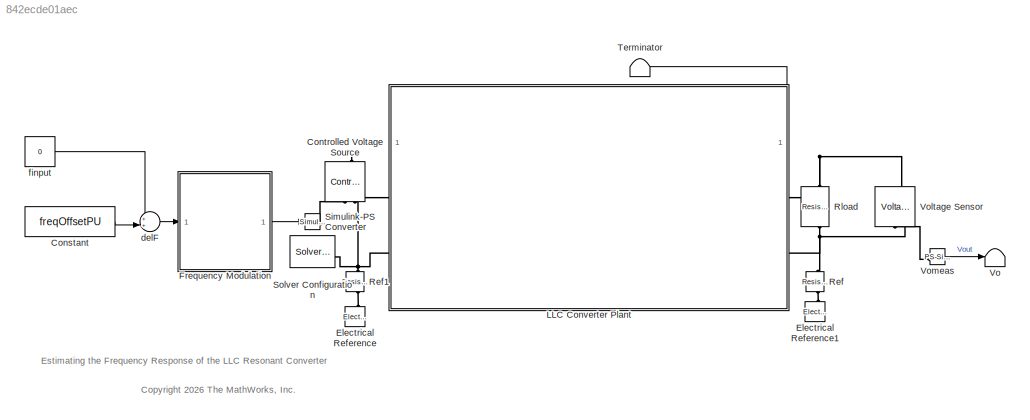
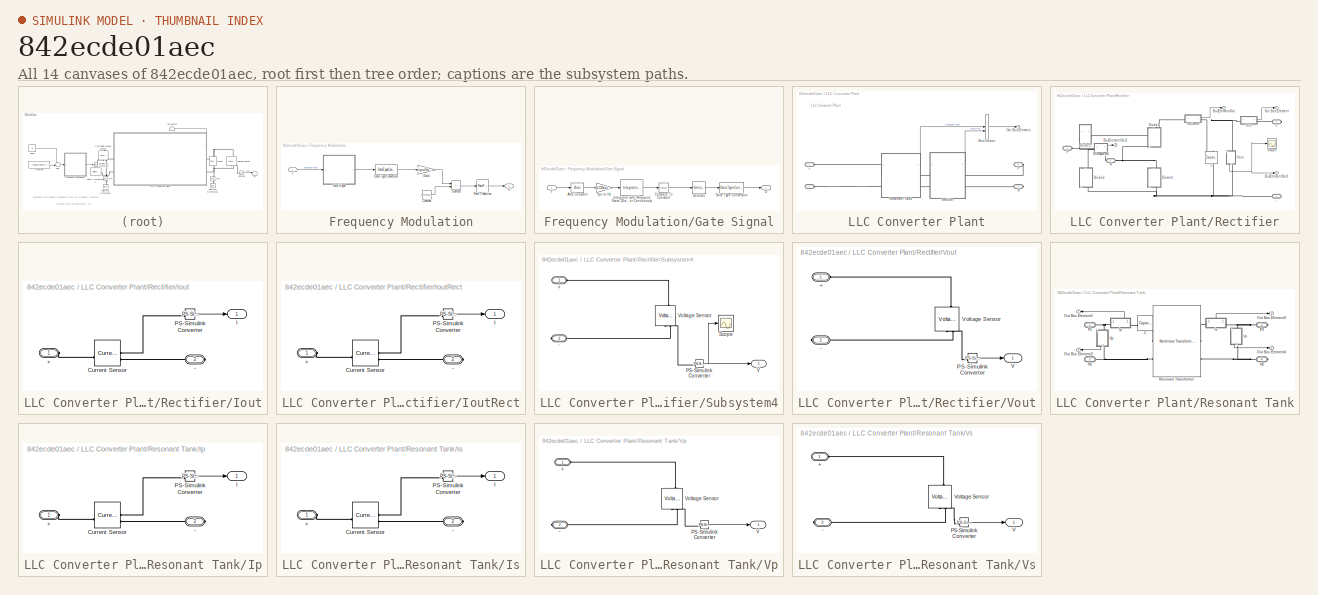
[diagram: thumbnail index - all 14 canvases of the model, root first then tree order]
MODEL slx_842ecde01aec
KIND model
CONFIG AbsTol = 1e-3
CONFIG EnableMultiTasking = off
CONFIG FixedStep = Ts
CONFIG MaxStep = auto
CONFIG MinStep = auto
CONFIG PreLoadFcn = % Parameterize the model\n\nif ~exist('LLCDesign', 'var')\nLLCConverterDefaultInputParameters;\ndisp("default value loaded")\nend\n
CONFIG RelTol = 1e-3
CONFIG SampleTimeConstraint = Unconstrained
CONFIG SolverName = VariableStepAuto
CONFIG StartTime = 0.0
CONFIG StopTime = simulationTime
BLOCK [Constant] Constant
  Value = freqOffsetPU
BLOCK [Reference] Controlled Voltage Source  REF=fl_lib/Electrical/Electrical Sources/Controlled Voltage
Source
  NameLocation = right
  SourceBlock = fl_lib/Electrical/Electrical Sources/Controlled Voltage\nSource
  SourceType = Controlled Voltage\nSource
BLOCK [Reference] Electrical Reference  REF=fl_lib/Electrical/Electrical Elements/Electrical Reference
  NameLocation = right
  SourceBlock = fl_lib/Electrical/Electrical Elements/Electrical Reference
  SourceType = Electrical Reference
BLOCK [Reference] Electrical Reference1  REF=fl_lib/Electrical/Electrical Elements/Electrical Reference
  NameLocation = right
  SourceBlock = fl_lib/Electrical/Electrical Elements/Electrical Reference
  SourceType = Electrical Reference
BLOCK [SubSystem] Frequency Modulation
BLOCK [Constant] Frequency Modulation/Constant
  Value = inputVoltage_V.value
BLOCK [DataTypeConversion] Frequency Modulation/Data Type Conversion
  RndMeth = Floor
  SaturateOnIntegerOverflow = off
BLOCK [Outport] Frequency Modulation/G
BLOCK [Gain] Frequency Modulation/Gain1
  Gain = inputVoltage_V.value*2
BLOCK [SubSystem] Frequency Modulation/Gate Signal
BLOCK [Bias] Frequency Modulation/Gate Signal/Add Constant
  Bias = 1
  SaturateOnIntegerOverflow = off
BLOCK [Reference] Frequency Modulation/Gate Signal/Compare To Constant  REF=simulink/Logic and Bit
Operations/Compare
To Constant
  SourceBlock = simulink/Logic and Bit\nOperations/Compare\nTo Constant
  SourceType = Compare To Constant
BLOCK [DataTypeConversion] Frequency Modulation/Gate Signal/Data Type Conversion
  RndMeth = Floor
  SaturateOnIntegerOverflow = off
BLOCK [Outport] Frequency Modulation/Gate Signal/G
BLOCK [Reference] Frequency Modulation/Gate Signal/Integrator with Wrapped State (Discrete or Continuous)  REF=eeGeneralControl/Integrator with
Wrapped State
(Discrete or Continuous)
  LibrarySourceBlock = ee_sl_lib/General Control/Integrator with\nWrapped State\n(Discrete or Continuous)
  SourceBlock = eeGeneralControl/Integrator with\nWrapped State\n(Discrete or Continuous)
  SourceType = Integrator with Wrapped State (Discrete or Continuous)
BLOCK [Selector] Frequency Modulation/Gate Signal/Selector
  IndexOptions = Index vector (dialog)
  Indices = [1]
  InputPortWidth = 2
  OutputSizes = 1
BLOCK [Inport] Frequency Modulation/Gate Signal/f
BLOCK [Gain] Frequency Modulation/Gate Signal/fpu to Hz
  Gain = LLCDesign.resonantFreq*2*pi
BLOCK [RateTransition] Frequency Modulation/Rate Transition
BLOCK [Sum] Frequency Modulation/Subtract
  IconShape = rectangular
  Inputs = +-
BLOCK [Inport] Frequency Modulation/f
BLOCK [SubSystem] LLC Converter Plant
  PortSchema = {"entries":[{"content":{"sides":[{"content":{"connectorIds":["LConn1","LConn2"]},"type":"ConnectorPlacement.EquallySpacedRectSide","uuid":"9d7037c5-8362-4639-a590-88c7a87a4fbd"},{"content":{"connectorIds":["RConn1","RConn2"],"side":"RIGHT"},"type":"ConnectorPlacement.EquallySpacedRectSide","uuid":"942947c3-387e-46dc-803e-f2f213fbe88c"},{"content":{"connectorIds":["Out1"],"side":"TOP"},"type":"Conn...<+269ch>
  VariantControl = fullConverter
BLOCK [PMIOPort] LLC Converter Plant/+
  Side = Left
BLOCK [PMIOPort] LLC Converter Plant/-
  Port = 2
  Side = Left
BLOCK [BusCreator] LLC Converter Plant/Bus Creator
  DisplayOption = bar
  InheritFromInputs = on
  Inputs = 2
BLOCK [PMIOPort] LLC Converter Plant/N
  Port = 4
  Side = Right
BLOCK [Outport] LLC Converter Plant/Out Bus Element
BLOCK [PMIOPort] LLC Converter Plant/P
  Port = 3
  Side = Right
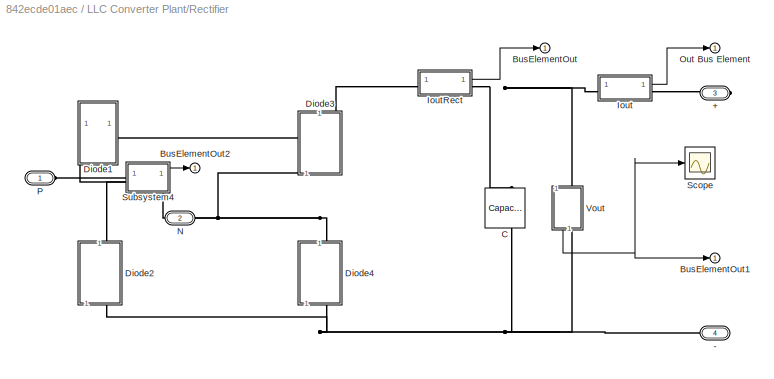
BLOCK [SubSystem] LLC Converter Plant/Rectifier
  PortSchema = {"entries":[{"content":{"sides":[{"content":{"connectorIds":["LConn1","LConn2"]},"type":"ConnectorPlacement.EquallySpacedRectSide","uuid":"4786b3cc-2245-4c72-a50b-9c63e4ad3d8a"},{"content":{"connectorIds":["RConn1","RConn2"],"side":"RIGHT"},"type":"ConnectorPlacement.EquallySpacedRectSide","uuid":"250a01d0-bf95-4e01-bf69-d866bcf3b7bd"},{"content":{"connectorIds":["Out1"],"side":"TOP"},"type":"Conn...<+269ch>
BLOCK [PMIOPort] LLC Converter Plant/Rectifier/+
  Port = 3
  Side = Right
BLOCK [PMIOPort] LLC Converter Plant/Rectifier/-
  Port = 4
  Side = Right
BLOCK [Outport] LLC Converter Plant/Rectifier/BusElementOut
BLOCK [Outport] LLC Converter Plant/Rectifier/BusElementOut1
BLOCK [Outport] LLC Converter Plant/Rectifier/BusElementOut2
BLOCK [Reference] LLC Converter Plant/Rectifier/C  REF=fl_lib/Electrical/Electrical Elements/Capacitor
  NameLocation = left
  SourceBlock = fl_lib/Electrical/Electrical Elements/Capacitor
  SourceType = Capacitor
BLOCK [SubSystem] LLC Converter Plant/Rectifier/Diode1
  NameLocation = top
  PortSchema = {"entries":[{"content":{"sides":[{"content":{},"type":"ConnectorPlacement.EquallySpacedRectSide","uuid":"8b053fdc-57c3-42d0-a795-f49711decca4"},{"content":{"side":"RIGHT"},"type":"ConnectorPlacement.EquallySpacedRectSide","uuid":"4b631d3b-8cca-4ce3-82a2-65a4f492aa8e"},{"content":{"connectorIds":["LConn1"],"side":"TOP"},"type":"ConnectorPlacement.EquallySpacedRectSide","uuid":"517b7f49-533e-4d6c-86...<+354ch>
  ReferencedSubsystem = LLCModelBasicDiode
BLOCK [SubSystem] LLC Converter Plant/Rectifier/Diode2
  NameLocation = right
  ReferencedSubsystem = LLCModelBasicDiode
BLOCK [SubSystem] LLC Converter Plant/Rectifier/Diode3
  NameLocation = right
  ReferencedSubsystem = LLCModelBasicDiode
BLOCK [SubSystem] LLC Converter Plant/Rectifier/Diode4
  NameLocation = right
  ReferencedSubsystem = LLCModelBasicDiode
BLOCK [SubSystem] LLC Converter Plant/Rectifier/Iout
BLOCK [PMIOPort] LLC Converter Plant/Rectifier/Iout/+
  Side = Left
BLOCK [PMIOPort] LLC Converter Plant/Rectifier/Iout/-
  Port = 2
  Side = Right
BLOCK [Reference] LLC Converter Plant/Rectifier/Iout/Current Sensor  REF=fl_lib/Electrical/Electrical Sensors/Current Sensor
  SourceBlock = fl_lib/Electrical/Electrical Sensors/Current Sensor
  SourceType = Current Sensor
BLOCK [Outport] LLC Converter Plant/Rectifier/Iout/I
BLOCK [Reference] LLC Converter Plant/Rectifier/Iout/PS-Simulink Converter  REF=nesl_utility/PS-Simulink
Converter
  SourceBlock = nesl_utility/PS-Simulink\nConverter
  SourceType = PS-Simulink\nConverter
BLOCK [SubSystem] LLC Converter Plant/Rectifier/IoutRect
BLOCK [PMIOPort] LLC Converter Plant/Rectifier/IoutRect/+
  Side = Left
BLOCK [PMIOPort] LLC Converter Plant/Rectifier/IoutRect/-
  Port = 2
  Side = Right
BLOCK [Reference] LLC Converter Plant/Rectifier/IoutRect/Current Sensor  REF=fl_lib/Electrical/Electrical Sensors/Current Sensor
  SourceBlock = fl_lib/Electrical/Electrical Sensors/Current Sensor
  SourceType = Current Sensor
BLOCK [Outport] LLC Converter Plant/Rectifier/IoutRect/I
BLOCK [Reference] LLC Converter Plant/Rectifier/IoutRect/PS-Simulink Converter  REF=nesl_utility/PS-Simulink
Converter
  SourceBlock = nesl_utility/PS-Simulink\nConverter
  SourceType = PS-Simulink\nConverter
BLOCK [PMIOPort] LLC Converter Plant/Rectifier/N
  NameLocation = top
  Port = 2
  Side = Left
BLOCK [Outport] LLC Converter Plant/Rectifier/Out Bus Element
BLOCK [PMIOPort] LLC Converter Plant/Rectifier/P
  NameLocation = top
  Side = Left
BLOCK [Scope] LLC Converter Plant/Rectifier/Scope
  ActiveDisplayYMaximum = 348.72049106971178
  ActiveDisplayYMinimum = 347.92834153908927
  Floating = off
  GraphicalSettings = {"Style":{"BackgroundColor":[0.12941176470588237,0.12941176470588237,0.12941176470588237],"AxesColor":[0.07058823529411765,0.07058823529411765,0.07058823529411765],"LabelsColor":[0.8509803921568627,0.8509803921568627,0.8509803921568627],"PreserveColors":false,"Visible":[true],"LineStyle":["-"],"LineWidth":[1.5],"BarWidth":[0.9],"LineColor":["auto"],"LineFaceAlpha":[1],"LineEdgeAlpha":[1],"Marker":...<+1890ch>
  MultipleDisplayCache = [{"MaxYLimMag":348.72049106971178,"MaxYLimReal":348.72049106971178,"MinYLimMag":347.92834153908927,"MinYLimReal":347.92834153908927,"PlotAsMagnitudePhase":false,"ShowGrid":true,"ShowLegend":false,"Title":"%<SignalLabel>","YLabel":""}]
  NumInputPorts = 1
  ScopeFrameLocation = window
  WasSavedAsWebScope = on
  WindowPosition = [1000.000000,415.000000,816.000000,515.000000,]
BLOCK [SubSystem] LLC Converter Plant/Rectifier/Subsystem4
  PortSchema = {"entries":[{"content":{"sides":[{"content":{"connectorIds":["LConn1"]},"type":"ConnectorPlacement.EquallySpacedRectSide","uuid":"e749c2ff-fd60-426f-a769-b61a7dfe80d2"},{"content":{"connectorIds":["RConn1","Out1"],"side":"RIGHT"},"type":"ConnectorPlacement.EquallySpacedRectSide","uuid":"f3bb02bd-f8d2-4326-b68c-6f969fa4ac22"},{"content":{"side":"TOP"},"type":"ConnectorPlacement.EquallySpacedRectSid...<+234ch>  <repeated x3 — deduplicated; at blocks: Subsystem4, Vout, Is>
BLOCK [PMIOPort] LLC Converter Plant/Rectifier/Subsystem4/+
  Side = Left
BLOCK [PMIOPort] LLC Converter Plant/Rectifier/Subsystem4/-
  Port = 2
  Side = Right
BLOCK [Reference] LLC Converter Plant/Rectifier/Subsystem4/PS-Simulink Converter  REF=nesl_utility/PS-Simulink
Converter
  SourceBlock = nesl_utility/PS-Simulink\nConverter
  SourceType = PS-Simulink\nConverter
BLOCK [Scope] LLC Converter Plant/Rectifier/Subsystem4/Scope
  ActiveDisplayYMaximum = 119.35218059829377
  ActiveDisplayYMinimum = -117.27505684442347
  DataLoggingVariableName = ScopeData5
  Floating = off
  GraphicalSettings = {"Style":{"BackgroundColor":[0.12941176470588237,0.12941176470588237,0.12941176470588237],"AxesColor":[0.07058823529411765,0.07058823529411765,0.07058823529411765],"LabelsColor":[0.8509803921568627,0.8509803921568627,0.8509803921568627],"PreserveColors":false,"Visible":[true],"LineStyle":["-"],"LineWidth":[1.5],"BarWidth":[0.9],"LineColor":["auto"],"LineFaceAlpha":[1],"LineEdgeAlpha":[1],"Marker":...<+2027ch>
  MultipleDisplayCache = [{"MaxYLimMag":119.35218059829377,"MaxYLimReal":119.35218059829377,"MinYLimMag":0,"MinYLimReal":-117.27505684442347,"PlotAsMagnitudePhase":false,"ShowGrid":true,"ShowLegend":false,"Title":"%<SignalLabel>","YLabel":""}]
  NumInputPorts = 1
  ScopeFrameLocation = window
  WasSavedAsWebScope = on
  WindowPosition = [680.000000,330.000000,560.000000,420.000000,]
BLOCK [Outport] LLC Converter Plant/Rectifier/Subsystem4/V
BLOCK [Reference] LLC Converter Plant/Rectifier/Subsystem4/Voltage Sensor  REF=fl_lib/Electrical/Electrical Sensors/Voltage Sensor
  NameLocation = right
  SourceBlock = fl_lib/Electrical/Electrical Sensors/Voltage Sensor
  SourceType = Voltage Sensor
BLOCK [SubSystem] LLC Converter Plant/Rectifier/Vout
  NameLocation = left
BLOCK [PMIOPort] LLC Converter Plant/Rectifier/Vout/+
  Side = Left
BLOCK [PMIOPort] LLC Converter Plant/Rectifier/Vout/-
  Port = 2
  Side = Right
BLOCK [Reference] LLC Converter Plant/Rectifier/Vout/PS-Simulink Converter  REF=nesl_utility/PS-Simulink
Converter
  SourceBlock = nesl_utility/PS-Simulink\nConverter
  SourceType = PS-Simulink\nConverter
BLOCK [Outport] LLC Converter Plant/Rectifier/Vout/V
BLOCK [Reference] LLC Converter Plant/Rectifier/Vout/Voltage Sensor  REF=fl_lib/Electrical/Electrical Sensors/Voltage Sensor
  NameLocation = right
  SourceBlock = fl_lib/Electrical/Electrical Sensors/Voltage Sensor
  SourceType = Voltage Sensor
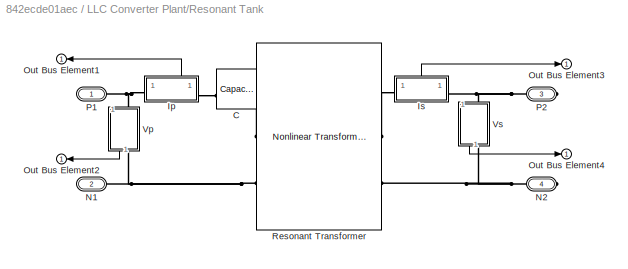
BLOCK [SubSystem] LLC Converter Plant/Resonant Tank
  PortSchema = {"entries":[{"content":{"sides":[{"content":{"connectorIds":["LConn1","LConn2"]},"type":"ConnectorPlacement.EquallySpacedRectSide","uuid":"d505f362-3b8e-4dee-9b5b-731d75550efb"},{"content":{"connectorIds":["RConn1","RConn2"],"side":"RIGHT"},"type":"ConnectorPlacement.EquallySpacedRectSide","uuid":"66ab4b84-9b7a-404b-b3f6-3ac1c371ea42"},{"content":{"connectorIds":["Out1"],"side":"TOP"},"type":"Conn...<+269ch>
BLOCK [Reference] LLC Converter Plant/Resonant Tank/C  REF=fl_lib/Electrical/Electrical Elements/Capacitor
  SourceBlock = fl_lib/Electrical/Electrical Elements/Capacitor
  SourceType = Capacitor
BLOCK [SubSystem] LLC Converter Plant/Resonant Tank/Ip
  PortSchema = {"entries":[{"content":{"sides":[{"content":{"connectorIds":["Out1","LConn1"]},"type":"ConnectorPlacement.EquallySpacedRectSide","uuid":"e749c2ff-fd60-426f-a769-b61a7dfe80d2"},{"content":{"connectorIds":["RConn1"],"side":"RIGHT"},"type":"ConnectorPlacement.EquallySpacedRectSide","uuid":"f3bb02bd-f8d2-4326-b68c-6f969fa4ac22"},{"content":{"side":"TOP"},"type":"ConnectorPlacement.EquallySpacedRectSid...<+234ch>
BLOCK [PMIOPort] LLC Converter Plant/Resonant Tank/Ip/+
  Side = Left
BLOCK [PMIOPort] LLC Converter Plant/Resonant Tank/Ip/-
  Port = 2
  Side = Right
BLOCK [Reference] LLC Converter Plant/Resonant Tank/Ip/Current Sensor  REF=fl_lib/Electrical/Electrical Sensors/Current Sensor
  SourceBlock = fl_lib/Electrical/Electrical Sensors/Current Sensor
  SourceType = Current Sensor
BLOCK [Outport] LLC Converter Plant/Resonant Tank/Ip/I
BLOCK [Reference] LLC Converter Plant/Resonant Tank/Ip/PS-Simulink Converter  REF=nesl_utility/PS-Simulink
Converter
  SourceBlock = nesl_utility/PS-Simulink\nConverter
  SourceType = PS-Simulink\nConverter
BLOCK [SubSystem] LLC Converter Plant/Resonant Tank/Is
BLOCK [PMIOPort] LLC Converter Plant/Resonant Tank/Is/+
  Side = Left
BLOCK [PMIOPort] LLC Converter Plant/Resonant Tank/Is/-
  Port = 2
  Side = Right
BLOCK [Reference] LLC Converter Plant/Resonant Tank/Is/Current Sensor  REF=fl_lib/Electrical/Electrical Sensors/Current Sensor
  SourceBlock = fl_lib/Electrical/Electrical Sensors/Current Sensor
  SourceType = Current Sensor
BLOCK [Outport] LLC Converter Plant/Resonant Tank/Is/I
BLOCK [Reference] LLC Converter Plant/Resonant Tank/Is/PS-Simulink Converter  REF=nesl_utility/PS-Simulink
Converter
  SourceBlock = nesl_utility/PS-Simulink\nConverter
  SourceType = PS-Simulink\nConverter
BLOCK [PMIOPort] LLC Converter Plant/Resonant Tank/N1
  Port = 2
  Side = Left
BLOCK [PMIOPort] LLC Converter Plant/Resonant Tank/N2
  Port = 4
  Side = Right
BLOCK [Outport] LLC Converter Plant/Resonant Tank/Out Bus Element1
  NameLocation = top
BLOCK [Outport] LLC Converter Plant/Resonant Tank/Out Bus Element2
  NameLocation = top
BLOCK [Outport] LLC Converter Plant/Resonant Tank/Out Bus Element3
BLOCK [Outport] LLC Converter Plant/Resonant Tank/Out Bus Element4
BLOCK [PMIOPort] LLC Converter Plant/Resonant Tank/P1
  Side = Left
BLOCK [PMIOPort] LLC Converter Plant/Resonant Tank/P2
  Port = 3
  Side = Right
BLOCK [Reference] LLC Converter Plant/Resonant Tank/Resonant Transformer  REF=ee_lib/Passive/Transformers/Nonlinear
Transformer
  SourceBlock = ee_lib/Passive/Transformers/Nonlinear\nTransformer
  SourceType = Nonlinear\nTransformer
BLOCK [SubSystem] LLC Converter Plant/Resonant Tank/Vp
  NameLocation = left
BLOCK [PMIOPort] LLC Converter Plant/Resonant Tank/Vp/+
  Side = Left
BLOCK [PMIOPort] LLC Converter Plant/Resonant Tank/Vp/-
  Port = 2
  Side = Right
BLOCK [Reference] LLC Converter Plant/Resonant Tank/Vp/PS-Simulink Converter  REF=nesl_utility/PS-Simulink
Converter
  SourceBlock = nesl_utility/PS-Simulink\nConverter
  SourceType = PS-Simulink\nConverter
BLOCK [Outport] LLC Converter Plant/Resonant Tank/Vp/V
BLOCK [Reference] LLC Converter Plant/Resonant Tank/Vp/Voltage Sensor  REF=fl_lib/Electrical/Electrical Sensors/Voltage Sensor
  NameLocation = right
  SourceBlock = fl_lib/Electrical/Electrical Sensors/Voltage Sensor
  SourceType = Voltage Sensor
BLOCK [SubSystem] LLC Converter Plant/Resonant Tank/Vs
  NameLocation = right
BLOCK [PMIOPort] LLC Converter Plant/Resonant Tank/Vs/+
  Side = Left
BLOCK [PMIOPort] LLC Converter Plant/Resonant Tank/Vs/-
  Port = 2
  Side = Right
BLOCK [Reference] LLC Converter Plant/Resonant Tank/Vs/PS-Simulink Converter  REF=nesl_utility/PS-Simulink
Converter
  SourceBlock = nesl_utility/PS-Simulink\nConverter
  SourceType = PS-Simulink\nConverter
BLOCK [Outport] LLC Converter Plant/Resonant Tank/Vs/V
BLOCK [Reference] LLC Converter Plant/Resonant Tank/Vs/Voltage Sensor  REF=fl_lib/Electrical/Electrical Sensors/Voltage Sensor
  NameLocation = right
  SourceBlock = fl_lib/Electrical/Electrical Sensors/Voltage Sensor
  SourceType = Voltage Sensor
BLOCK [Reference] Ref  REF=fl_lib/Electrical/Electrical Elements/Resistor
  NameLocation = right
  SourceBlock = fl_lib/Electrical/Electrical Elements/Resistor
  SourceType = Resistor
BLOCK [Reference] Ref1  REF=fl_lib/Electrical/Electrical Elements/Resistor
  NameLocation = right
  SourceBlock = fl_lib/Electrical/Electrical Elements/Resistor
  SourceType = Resistor
BLOCK [Reference] Rload  REF=fl_lib/Electrical/Electrical Elements/Resistor
  NameLocation = right
  SourceBlock = fl_lib/Electrical/Electrical Elements/Resistor
  SourceType = Resistor
BLOCK [Reference] Simulink-PS Converter  REF=nesl_utility/Simulink-PS
Converter
  SourceBlock = nesl_utility/Simulink-PS\nConverter
  SourceType = Simulink-PS\nConverter
BLOCK [Reference] Solver Configuration  REF=nesl_utility/Solver
Configuration
  SourceBlock = nesl_utility/Solver\nConfiguration
  SourceType = Solver\nConfiguration
BLOCK [Terminator] Terminator
BLOCK [Terminator] Vo
BLOCK [Reference] Voltage Sensor  REF=fl_lib/Electrical/Electrical Sensors/Voltage Sensor
  NameLocation = right
  SourceBlock = fl_lib/Electrical/Electrical Sensors/Voltage Sensor
  SourceType = Voltage Sensor
BLOCK [Reference] Vomeas  REF=nesl_utility/PS-Simulink
Converter
  SourceBlock = nesl_utility/PS-Simulink\nConverter
  SourceType = PS-Simulink\nConverter
BLOCK [Sum] delF
  Inputs = ++|
BLOCK [Constant] finput
  Value = 0
ANNOTATION (root): Estimating the Frequency Response of the LLC Resonant Converter
ANNOTATION (root): <copyright redacted>
ANNOTATION LLC Converter Plant: LLC Converter Plant
LINE Constant:1 -> delF:2
LINE Frequency Modulation/Constant:1 -> Frequency Modulation/Subtract:2
LINE Frequency Modulation/Data Type Conversion:1 -> Frequency Modulation/Gain1:1
LINE Frequency Modulation/Gain1:1 -> Frequency Modulation/Subtract:1
LINE Frequency Modulation/Gate Signal/Add Constant:1 -> Frequency Modulation/Gate Signal/fpu to Hz:1
LINE Frequency Modulation/Gate Signal/Compare To Constant:1 -> Frequency Modulation/Gate Signal/Selector:1
LINE Frequency Modulation/Gate Signal/Data Type Conversion:1 -> Frequency Modulation/Gate Signal/G:1
LINE Frequency Modulation/Gate Signal/Integrator with Wrapped State (Discrete or Continuous):1 -> Frequency Modulation/Gate Signal/Compare To Constant:1
LINE Frequency Modulation/Gate Signal/Selector:1 -> Frequency Modulation/Gate Signal/Data Type Conversion:1
LINE Frequency Modulation/Gate Signal/f:1 -> Frequency Modulation/Gate Signal/Add Constant:1
LINE Frequency Modulation/Gate Signal/fpu to Hz:1 -> Frequency Modulation/Gate Signal/Integrator with Wrapped State (Discrete or Continuous):1
LINE Frequency Modulation/Gate Signal:1 -> Frequency Modulation/Data Type Conversion:1
LINE Frequency Modulation/Rate Transition:1 -> Frequency Modulation/G:1
LINE Frequency Modulation/Subtract:1 -> Frequency Modulation/Rate Transition:1
LINE Frequency Modulation/f:1 -> Frequency Modulation/Gate Signal:1
LINE Frequency Modulation:1 -> Simulink-PS Converter:1
LINE LLC Converter Plant/Bus Creator:1 -> LLC Converter Plant/Out Bus Element:1
LINE LLC Converter Plant/Rectifier/Iout/PS-Simulink Converter:1 -> LLC Converter Plant/Rectifier/Iout/I:1
LINE LLC Converter Plant/Rectifier/Iout:1 -> LLC Converter Plant/Rectifier/Out Bus Element:1
LINE LLC Converter Plant/Rectifier/IoutRect/PS-Simulink Converter:1 -> LLC Converter Plant/Rectifier/IoutRect/I:1
LINE LLC Converter Plant/Rectifier/IoutRect:1 -> LLC Converter Plant/Rectifier/BusElementOut:1
NET LLC Converter Plant/Rectifier/Subsystem4/PS-Simulink Converter:1 -> LLC Converter Plant/Rectifier/Subsystem4/Scope:1, LLC Converter Plant/Rectifier/Subsystem4/V:1
LINE LLC Converter Plant/Rectifier/Subsystem4:1 -> LLC Converter Plant/Rectifier/BusElementOut2:1
LINE LLC Converter Plant/Rectifier/Vout/PS-Simulink Converter:1 -> LLC Converter Plant/Rectifier/Vout/V:1
NET LLC Converter Plant/Rectifier/Vout:1 -> LLC Converter Plant/Rectifier/BusElementOut1:1, LLC Converter Plant/Rectifier/Scope:1
LINE LLC Converter Plant/Rectifier:1 -> LLC Converter Plant/Bus Creator:2
LINE LLC Converter Plant/Resonant Tank/Ip/PS-Simulink Converter:1 -> LLC Converter Plant/Resonant Tank/Ip/I:1
LINE LLC Converter Plant/Resonant Tank/Ip:1 -> LLC Converter Plant/Resonant Tank/Out Bus Element1:1
LINE LLC Converter Plant/Resonant Tank/Is/PS-Simulink Converter:1 -> LLC Converter Plant/Resonant Tank/Is/I:1
LINE LLC Converter Plant/Resonant Tank/Is:1 -> LLC Converter Plant/Resonant Tank/Out Bus Element3:1
LINE LLC Converter Plant/Resonant Tank/Vp/PS-Simulink Converter:1 -> LLC Converter Plant/Resonant Tank/Vp/V:1
LINE LLC Converter Plant/Resonant Tank/Vp:1 -> LLC Converter Plant/Resonant Tank/Out Bus Element2:1
LINE LLC Converter Plant/Resonant Tank/Vs/PS-Simulink Converter:1 -> LLC Converter Plant/Resonant Tank/Vs/V:1
LINE LLC Converter Plant/Resonant Tank/Vs:1 -> LLC Converter Plant/Resonant Tank/Out Bus Element4:1
LINE LLC Converter Plant/Resonant Tank:1 -> LLC Converter Plant/Bus Creator:1
LINE LLC Converter Plant:1 -> Terminator:1
LINE Vomeas:1 -> Vo:1
LINE delF:1 -> Frequency Modulation:1
LINE finput:1 -> delF:1
PLINE Controlled Voltage Source:LConn1 -- LLC Converter Plant:LConn1
PLINE Controlled Voltage Source:RConn1 -- Simulink-PS Converter:RConn1
PNET net1: Controlled Voltage Source:RConn2 -- LLC Converter Plant:LConn2 -- Ref1:LConn1 -- Solver Configuration:RConn1
PLINE Electrical Reference1:LConn1 -- Ref:RConn1
PLINE Electrical Reference:LConn1 -- Ref1:RConn1
PLINE LLC Converter Plant/+:RConn1 -- LLC Converter Plant/Resonant Tank:LConn1
PLINE LLC Converter Plant/-:RConn1 -- LLC Converter Plant/Resonant Tank:LConn2
PLINE LLC Converter Plant/N:RConn1 -- LLC Converter Plant/Rectifier:RConn2
PLINE LLC Converter Plant/P:RConn1 -- LLC Converter Plant/Rectifier:RConn1
PLINE LLC Converter Plant/Rectifier/+:RConn1 -- LLC Converter Plant/Rectifier/Iout:RConn1
PNET net2: LLC Converter Plant/Rectifier/-:RConn1 -- LLC Converter Plant/Rectifier/C:RConn1 -- LLC Converter Plant/Rectifier/Diode2:LConn1 -- LLC Converter Plant/Rectifier/Diode4:LConn1 -- LLC Converter Plant/Rectifier/Vout:RConn1
PNET net3: LLC Converter Plant/Rectifier/C:LConn1 -- LLC Converter Plant/Rectifier/Iout:LConn1 -- LLC Converter Plant/Rectifier/IoutRect:RConn1 -- LLC Converter Plant/Rectifier/Vout:LConn1
PNET net4: LLC Converter Plant/Rectifier/Diode1:LConn1 -- LLC Converter Plant/Rectifier/Diode2:RConn1 -- LLC Converter Plant/Rectifier/P:RConn1 -- LLC Converter Plant/Rectifier/Subsystem4:LConn1
PNET net5: LLC Converter Plant/Rectifier/Diode1:RConn1 -- LLC Converter Plant/Rectifier/Diode3:RConn1 -- LLC Converter Plant/Rectifier/IoutRect:LConn1
PNET net6: LLC Converter Plant/Rectifier/Diode3:LConn1 -- LLC Converter Plant/Rectifier/Diode4:RConn1 -- LLC Converter Plant/Rectifier/N:RConn1 -- LLC Converter Plant/Rectifier/Subsystem4:RConn1
PLINE LLC Converter Plant/Rectifier/Iout/+:RConn1 -- LLC Converter Plant/Rectifier/Iout/Current Sensor:LConn1
PLINE LLC Converter Plant/Rectifier/Iout/-:RConn1 -- LLC Converter Plant/Rectifier/Iout/Current Sensor:RConn2
PLINE LLC Converter Plant/Rectifier/Iout/Current Sensor:RConn1 -- LLC Converter Plant/Rectifier/Iout/PS-Simulink Converter:LConn1
PLINE LLC Converter Plant/Rectifier/IoutRect/+:RConn1 -- LLC Converter Plant/Rectifier/IoutRect/Current Sensor:LConn1
PLINE LLC Converter Plant/Rectifier/IoutRect/-:RConn1 -- LLC Converter Plant/Rectifier/IoutRect/Current Sensor:RConn2
PLINE LLC Converter Plant/Rectifier/IoutRect/Current Sensor:RConn1 -- LLC Converter Plant/Rectifier/IoutRect/PS-Simulink Converter:LConn1
PLINE LLC Converter Plant/Rectifier/Subsystem4/+:RConn1 -- LLC Converter Plant/Rectifier/Subsystem4/Voltage Sensor:LConn1
PLINE LLC Converter Plant/Rectifier/Subsystem4/-:RConn1 -- LLC Converter Plant/Rectifier/Subsystem4/Voltage Sensor:RConn2
PLINE LLC Converter Plant/Rectifier/Subsystem4/PS-Simulink Converter:LConn1 -- LLC Converter Plant/Rectifier/Subsystem4/Voltage Sensor:RConn1
PLINE LLC Converter Plant/Rectifier/Vout/+:RConn1 -- LLC Converter Plant/Rectifier/Vout/Voltage Sensor:LConn1
PLINE LLC Converter Plant/Rectifier/Vout/-:RConn1 -- LLC Converter Plant/Rectifier/Vout/Voltage Sensor:RConn2
PLINE LLC Converter Plant/Rectifier/Vout/PS-Simulink Converter:LConn1 -- LLC Converter Plant/Rectifier/Vout/Voltage Sensor:RConn1
PLINE LLC Converter Plant/Rectifier:LConn1 -- LLC Converter Plant/Resonant Tank:RConn1
PLINE LLC Converter Plant/Rectifier:LConn2 -- LLC Converter Plant/Resonant Tank:RConn2
PLINE LLC Converter Plant/Resonant Tank/C:LConn1 -- LLC Converter Plant/Resonant Tank/Ip:RConn1
PLINE LLC Converter Plant/Resonant Tank/C:RConn1 -- LLC Converter Plant/Resonant Tank/Resonant Transformer:LConn1
PLINE LLC Converter Plant/Resonant Tank/Ip/+:RConn1 -- LLC Converter Plant/Resonant Tank/Ip/Current Sensor:LConn1
PLINE LLC Converter Plant/Resonant Tank/Ip/-:RConn1 -- LLC Converter Plant/Resonant Tank/Ip/Current Sensor:RConn2
PLINE LLC Converter Plant/Resonant Tank/Ip/Current Sensor:RConn1 -- LLC Converter Plant/Resonant Tank/Ip/PS-Simulink Converter:LConn1
PNET net7: LLC Converter Plant/Resonant Tank/Ip:LConn1 -- LLC Converter Plant/Resonant Tank/P1:RConn1 -- LLC Converter Plant/Resonant Tank/Vp:LConn1
PLINE LLC Converter Plant/Resonant Tank/Is/+:RConn1 -- LLC Converter Plant/Resonant Tank/Is/Current Sensor:LConn1
PLINE LLC Converter Plant/Resonant Tank/Is/-:RConn1 -- LLC Converter Plant/Resonant Tank/Is/Current Sensor:RConn2
PLINE LLC Converter Plant/Resonant Tank/Is/Current Sensor:RConn1 -- LLC Converter Plant/Resonant Tank/Is/PS-Simulink Converter:LConn1
PLINE LLC Converter Plant/Resonant Tank/Is:LConn1 -- LLC Converter Plant/Resonant Tank/Resonant Transformer:RConn1
PNET net8: LLC Converter Plant/Resonant Tank/Is:RConn1 -- LLC Converter Plant/Resonant Tank/P2:RConn1 -- LLC Converter Plant/Resonant Tank/Vs:LConn1
PNET net9: LLC Converter Plant/Resonant Tank/N1:RConn1 -- LLC Converter Plant/Resonant Tank/Resonant Transformer:LConn2 -- LLC Converter Plant/Resonant Tank/Vp:RConn1
PNET net10: LLC Converter Plant/Resonant Tank/N2:RConn1 -- LLC Converter Plant/Resonant Tank/Resonant Transformer:RConn2 -- LLC Converter Plant/Resonant Tank/Vs:RConn1
PLINE LLC Converter Plant/Resonant Tank/Vp/+:RConn1 -- LLC Converter Plant/Resonant Tank/Vp/Voltage Sensor:LConn1
PLINE LLC Converter Plant/Resonant Tank/Vp/-:RConn1 -- LLC Converter Plant/Resonant Tank/Vp/Voltage Sensor:RConn2
PLINE LLC Converter Plant/Resonant Tank/Vp/PS-Simulink Converter:LConn1 -- LLC Converter Plant/Resonant Tank/Vp/Voltage Sensor:RConn1
PLINE LLC Converter Plant/Resonant Tank/Vs/+:RConn1 -- LLC Converter Plant/Resonant Tank/Vs/Voltage Sensor:LConn1
PLINE LLC Converter Plant/Resonant Tank/Vs/-:RConn1 -- LLC Converter Plant/Resonant Tank/Vs/Voltage Sensor:RConn2
PLINE LLC Converter Plant/Resonant Tank/Vs/PS-Simulink Converter:LConn1 -- LLC Converter Plant/Resonant Tank/Vs/Voltage Sensor:RConn1
PNET net11: LLC Converter Plant:RConn1 -- Rload:LConn1 -- Voltage Sensor:LConn1
PNET net12: LLC Converter Plant:RConn2 -- Ref:LConn1 -- Rload:RConn1 -- Voltage Sensor:RConn2
PLINE Voltage Sensor:RConn1 -- Vomeas:LConn1
note: NET lines group one-source signal fan-out (src -> all destinations, sorted); 1:1 wires keep LINE; PNET lines group multi-terminal physical nets as a canonical sorted terminal list (undirected conserving connections); 2-terminal nets keep the pairwise PLINE form
